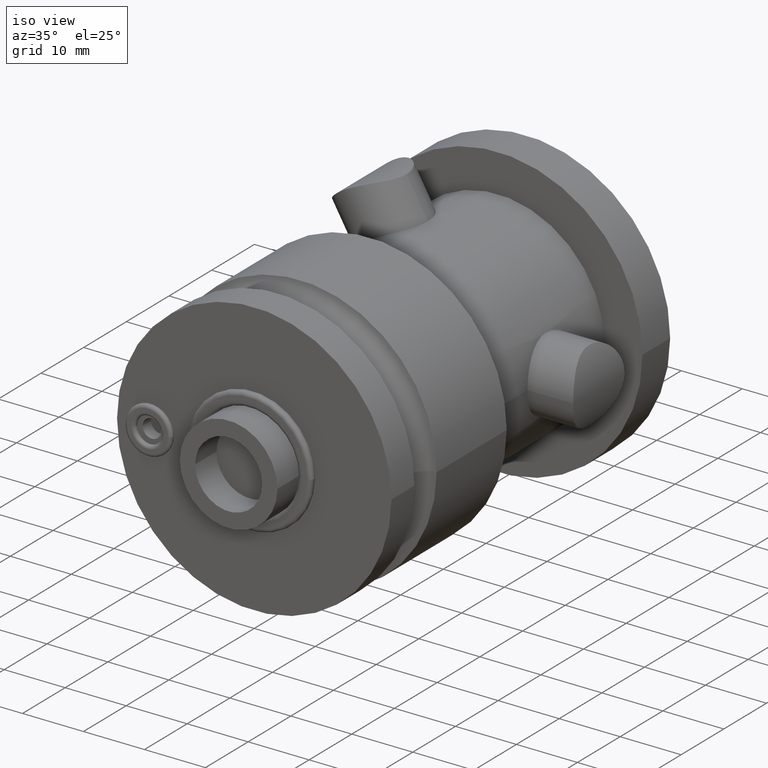
[diagram: clean part render]
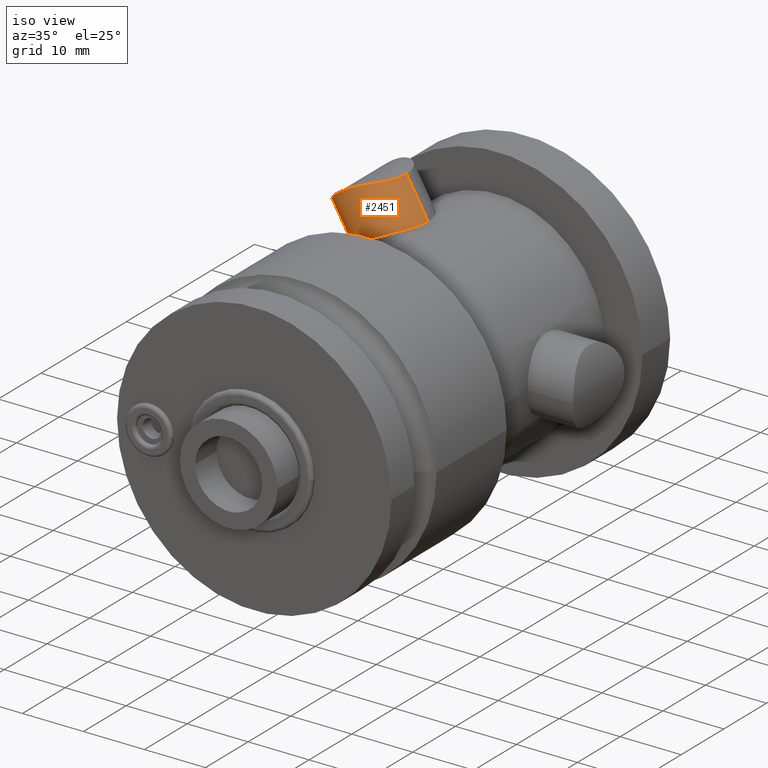
[diagram: same view with one face highlighted and labeled with its STEP entity id]
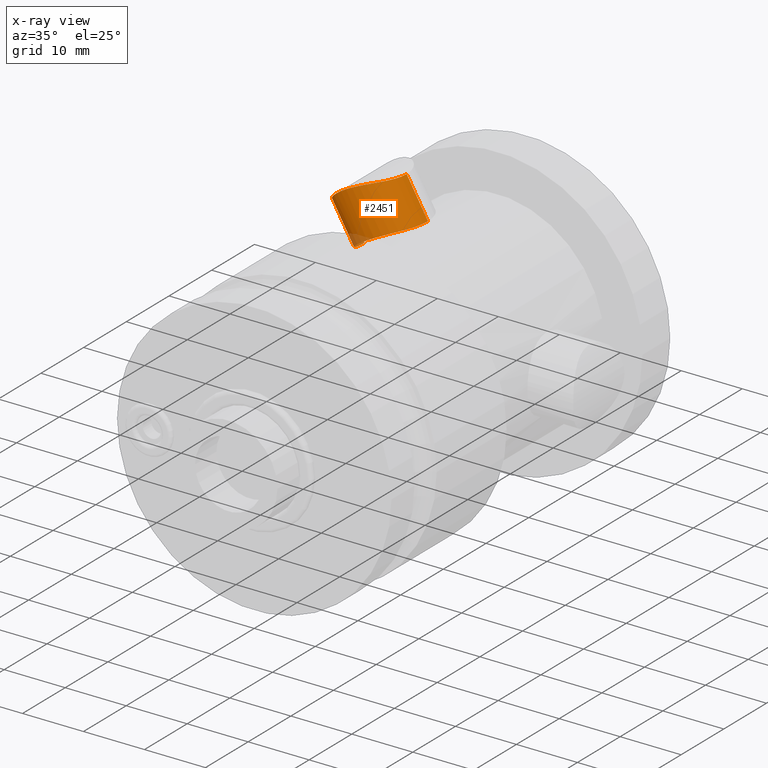
[diagram: x-ray of the same camera — body ghosted, the highlighted face saturated]
A machine part, iso view. The second image highlights one B-rep face of the part: STEP entity #2451.
The next image is the same camera in x-ray: the body ghosted, the highlighted face saturated — about 4% of this face is hidden behind the body in this view.
In plain terms, the highlighted cylindrical surface (partial cylindrical patch) has radius 6 mm, axis along (-0.5, 0, 0.866).
Its self-contained STEP definition (entity closure, byte-faithful):
#654=CARTESIAN_POINT('',(-3.023488686702E0,4.5E1,1.723683602525E1));
#673=CARTESIAN_POINT('',(-1.341579353280E1,4.5E1,1.123683602644E1));
#678=CARTESIAN_POINT('',(-1.341579353280E1,4.5E1,1.123683602644E1));
#679=CARTESIAN_POINT('',(-1.341579353280E1,4.459413259427E1,1.123683602644E1));
#680=CARTESIAN_POINT('',(-1.336090541019E1,4.380310372310E1,1.130285144867E1));
#681=CARTESIAN_POINT('',(-1.311762184099E1,4.265806646773E1,1.158684679774E1));
#682=CARTESIAN_POINT('',(-1.271877233918E1,4.161623626202E1,1.202666973516E1));
#683=CARTESIAN_POINT('',(-1.216709070687E1,4.070161008469E1,1.258845385442E1));
#684=CARTESIAN_POINT('',(-1.146194987811E1,3.994722959156E1,1.323704461464E1));
#685=CARTESIAN_POINT('',(-1.065432049238E1,3.941262890040E1,1.389597749074E1));
#686=CARTESIAN_POINT('',(-9.819478521090E0,3.910221110797E1,1.449743962928E1));
#687=CARTESIAN_POINT('',(-8.958561980176E0,3.897608424019E1,1.504454686810E1));
#688=CARTESIAN_POINT('',(-8.073386615745E0,3.902156762474E1,1.553743914984E1));
#689=CARTESIAN_POINT('',(-7.165115470081E0,3.923984460858E1,1.597635945029E1));
#690=CARTESIAN_POINT('',(-6.265199149769E0,3.963280449112E1,1.634899066599E1));
#691=CARTESIAN_POINT('',(-5.445315348324E0,4.017152785196E1,1.663726223780E1));
#692=CARTESIAN_POINT('',(-4.762578854527E0,4.077497316198E1,1.684446352870E1));
#693=CARTESIAN_POINT('',(-4.064537940681E0,4.160800001197E1,1.702604735516E1));
#694=CARTESIAN_POINT('',(-3.479439650532E0,4.264384338715E1,1.715297121427E1));
#695=CARTESIAN_POINT('',(-3.101112342786E0,4.383022881567E1,1.722357599060E1));
#696=CARTESIAN_POINT('',(-3.023488686702E0,4.460616407920E1,1.723683602525E1));
#697=CARTESIAN_POINT('',(-3.023488686702E0,4.5E1,1.723683602525E1));
#991=CARTESIAN_POINT('',(-1.691115476190E1,4.5E1,1.729097926604E1));
#1009=CARTESIAN_POINT('',(-6.518849916483E0,4.5E1,2.329097926604E1));
#1014=DIRECTION('',(-5.E-1,0.E0,8.660254037844E-1));
#1015=VECTOR('',#1014,6.990722459562E0);
#1016=CARTESIAN_POINT('',(-3.023488686702E0,4.5E1,1.723683602525E1));
#1017=LINE('',#1016,#1015);
#1021=CARTESIAN_POINT('',(-6.518849916483E0,4.5E1,2.329097926604E1));
#1022=CARTESIAN_POINT('',(-6.518849916483E0,4.459966321055E1,2.329097926604E1));
#1023=CARTESIAN_POINT('',(-6.610978357979E0,4.380272103978E1,2.329043007744E1));
#1024=CARTESIAN_POINT('',(-7.012027462740E0,4.265961946374E1,2.327879581950E1));
#1025=CARTESIAN_POINT('',(-7.630967200150E0,4.162866085859E1,2.323421170591E1));
#1026=CARTESIAN_POINT('',(-8.424514189658E0,4.073111002059E1,2.312975724838E1));
#1027=CARTESIAN_POINT('',(-9.349123306623E0,3.999293951626E1,2.293934234660E1));
#1028=CARTESIAN_POINT('',(-1.037258511154E1,3.942987082498E1,2.263988207583E1));
#1029=CARTESIAN_POINT('',(-1.147557077230E1,3.907236281145E1,2.220078844854E1));
#1030=CARTESIAN_POINT('',(-1.251869277903E1,3.896285706953E1,2.166103671203E1));
#1031=CARTESIAN_POINT('',(-1.350360201779E1,3.907626282475E1,2.102770025004E1));
#1032=CARTESIAN_POINT('',(-1.443151751494E1,3.943615179398E1,2.029307877526E1));
#1033=CARTESIAN_POINT('',(-1.519932292410E1,4.000052947844E1,1.955799461843E1));
#1034=CARTESIAN_POINT('',(-1.582328281672E1,4.073828303376E1,1.885502731271E1));
#1035=CARTESIAN_POINT('',(-1.630783200042E1,4.163364033361E1,1.822297403648E1));
#1036=CARTESIAN_POINT('',(-1.665422795489E1,4.266117123554E1,1.771161753889E1));
#1037=CARTESIAN_POINT('',(-1.686441932675E1,4.380147266690E1,1.737081865485E1));
#1038=CARTESIAN_POINT('',(-1.691115476190E1,4.459891692044E1,1.729097926604E1));
#1039=CARTESIAN_POINT('',(-1.691115476190E1,4.5E1,1.729097926604E1));
#1044=DIRECTION('',(-5.E-1,0.E0,8.660254037844E-1));
#1045=VECTOR('',#1044,6.990722458185E0);
#1046=CARTESIAN_POINT('',(-1.341579353280E1,4.5E1,1.123683602644E1));
#1047=LINE('',#1046,#1045);
#1617=VERTEX_POINT('',#654);
#1618=VERTEX_POINT('',#673);
#1623=VERTEX_POINT('',#991);
#1624=VERTEX_POINT('',#1009);
#2440=CARTESIAN_POINT('',(-3.75E0,4.5E1,6.495190532156E0));
#2441=DIRECTION('',(-5.E-1,0.E0,8.660254037844E-1));
#2442=DIRECTION('',(8.660254037844E-1,0.E0,5.E-1));
#2443=AXIS2_PLACEMENT_3D('',#2440,#2441,#2442);
#2444=CYLINDRICAL_SURFACE('',#2443,6.E0);
#2445=ORIENTED_EDGE('',*,*,#2423,.F.);
#2446=ORIENTED_EDGE('',*,*,#2400,.F.);
#2447=ORIENTED_EDGE('',*,*,#2133,.F.);
#2448=ORIENTED_EDGE('',*,*,#2397,.T.);
#2449=EDGE_LOOP('',(#2445,#2446,#2447,#2448));
#2450=FACE_OUTER_BOUND('',#2449,.F.);
#698=B_SPLINE_CURVE_WITH_KNOTS('',3,(#678,#679,#680,#681,#682,#683,#684,#685,
#686,#687,#688,#689,#690,#691,#692,#693,#694,#695,#696,#697),.UNSPECIFIED.,.F.,
.F.,(4,1,1,1,1,1,1,1,1,1,1,1,1,1,1,1,1,4),(0.E0,5.882352941176E-2,
1.176470588235E-1,1.764705882353E-1,2.352941176471E-1,2.941176470588E-1,
3.529411764706E-1,4.117647058824E-1,4.705882352941E-1,5.294117647059E-1,
5.882352941176E-1,6.470588235294E-1,7.058823529412E-1,7.647058823529E-1,
8.235294117647E-1,8.823529411765E-1,9.411764705882E-1,1.E0),.UNSPECIFIED.);
#1040=B_SPLINE_CURVE_WITH_KNOTS('',3,(#1021,#1022,#1023,#1024,#1025,#1026,#1027,
#1028,#1029,#1030,#1031,#1032,#1033,#1034,#1035,#1036,#1037,#1038,#1039),
.UNSPECIFIED.,.F.,.F.,(4,1,1,1,1,1,1,1,1,1,1,1,1,1,1,1,4),(0.E0,6.25E-2,1.25E-1,
1.875E-1,2.5E-1,3.125E-1,3.75E-1,4.375E-1,5.E-1,5.625E-1,6.25E-1,6.875E-1,
7.5E-1,8.125E-1,8.75E-1,9.375E-1,1.E0),.UNSPECIFIED.);
#2133=EDGE_CURVE('',#1618,#1617,#698,.T.);
#2397=EDGE_CURVE('',#1618,#1623,#1047,.T.);
#2400=EDGE_CURVE('',#1617,#1624,#1017,.T.);
#2423=EDGE_CURVE('',#1624,#1623,#1040,.T.);
#2451=ADVANCED_FACE('',(#2450),#2444,.T.);